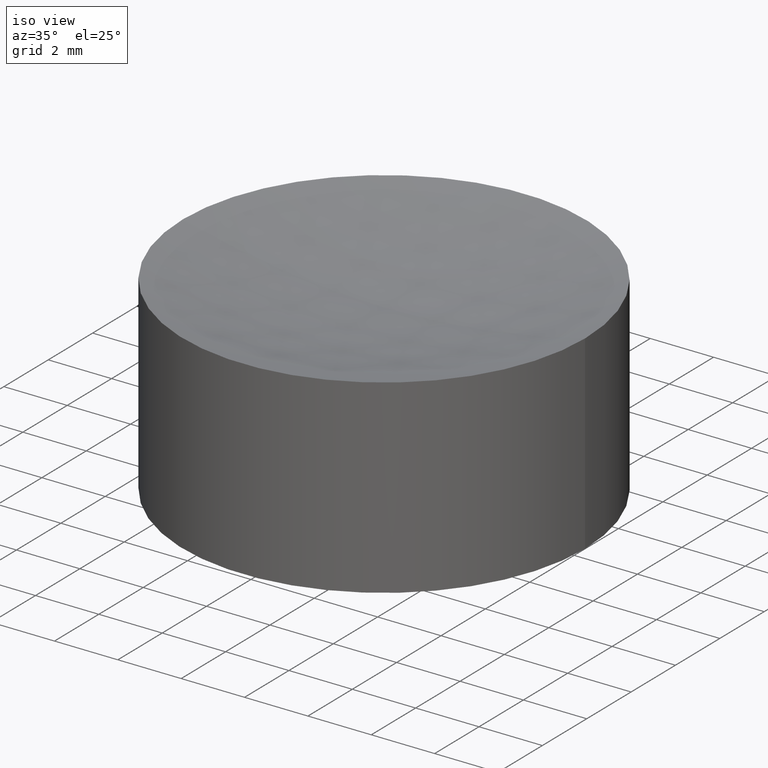
[diagram: clean part render]
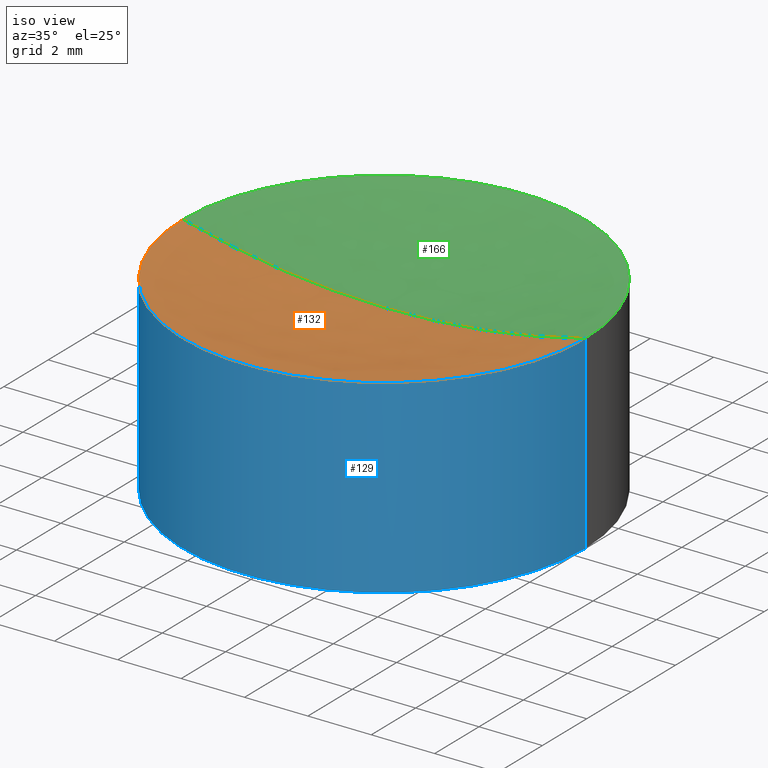
[diagram: same view with three faces highlighted in distinct colors, each labeled with its STEP entity id]
A machine part, iso view with three faces highlighted in distinct colors.
Their STEP definitions:

[orange] entity #132 — the highlighted spherical surface has radius 25 mm.
#1 = CARTESIAN_POINT ( 'NONE',  ( -6.349999999999997868, 0.000000000000000000, 5.999999999999998224 ) ) ;
#25 = DIRECTION ( 'NONE',  ( 0.000000000000000000, 0.000000000000000000, 1.000000000000000000 ) ) ;
#27 = DIRECTION ( 'NONE',  ( 0.000000000000000000, 1.000000000000000000, -0.000000000000000000 ) ) ;
#29 = DIRECTION ( 'NONE',  ( 1.000000000000000000, 1.224646799147353207E-16, 0.000000000000000000 ) ) ;
#36 = VERTEX_POINT ( 'NONE', #1 ) ;
#43 = CARTESIAN_POINT ( 'NONE',  ( 4.336808689942017736E-15, 0.000000000000000000, 30.18010545882710005 ) ) ;
#46 = DIRECTION ( 'NONE',  ( 1.224646799147353207E-16, -1.000000000000000000, 0.000000000000000000 ) ) ;
#54 = VERTEX_POINT ( 'NONE', #105 ) ;
#56 = CARTESIAN_POINT ( 'NONE',  ( 5.867617188876209455E-15, 0.000000000000000000, 5.180105458827095610 ) ) ;
#57 = CARTESIAN_POINT ( 'NONE',  ( 4.336808689942017736E-15, 0.000000000000000000, 30.18010545882710005 ) ) ;
#70 = DIRECTION ( 'NONE',  ( -0.000000000000000000, -0.000000000000000000, -1.000000000000000000 ) ) ;
#80 = AXIS2_PLACEMENT_3D ( 'NONE', #43, #98, #82 ) ;
#81 = EDGE_LOOP ( 'NONE', ( #121, #156, #133 ) ) ;
#82 = DIRECTION ( 'NONE',  ( 1.000000000000000000, 0.000000000000000000, 0.000000000000000000 ) ) ;
#92 = EDGE_CURVE ( 'NONE', #54, #120, #149, .T. ) ;
#94 = AXIS2_PLACEMENT_3D ( 'NONE', #99, #70, #161 ) ;
#98 = DIRECTION ( 'NONE',  ( 0.000000000000000000, -1.000000000000000000, -0.000000000000000000 ) ) ;
#99 = CARTESIAN_POINT ( 'NONE',  ( 4.336808689942017736E-15, 0.000000000000000000, 5.999999999999998224 ) ) ;
#105 = CARTESIAN_POINT ( 'NONE',  ( 6.350000000000006750, 7.776507174585701038E-16, 5.999999999999998224 ) ) ;
#108 = CARTESIAN_POINT ( 'NONE',  ( 4.336808689942017736E-15, 0.000000000000000000, 30.18010545882710005 ) ) ;
#116 = CIRCLE ( 'NONE', #94, 6.350000000000002309 ) ;
#120 = VERTEX_POINT ( 'NONE', #56 ) ;
#121 = ORIENTED_EDGE ( 'NONE', *, *, #176, .F. ) ;
#132 = ADVANCED_FACE ( 'NONE', ( #160 ), #180, .F. ) ;
#133 = ORIENTED_EDGE ( 'NONE', *, *, #92, .T. ) ;
#139 = AXIS2_PLACEMENT_3D ( 'NONE', #57, #46, #29 ) ;
#144 = CIRCLE ( 'NONE', #139, 25.00000000000000355 ) ;
#149 = CIRCLE ( 'NONE', #191, 25.00000000000000711 ) ;
#156 = ORIENTED_EDGE ( 'NONE', *, *, #193, .F. ) ;
#160 = FACE_OUTER_BOUND ( 'NONE', #81, .T. ) ;
#161 = DIRECTION ( 'NONE',  ( 1.000000000000000000, 0.000000000000000000, 0.000000000000000000 ) ) ;
#176 = EDGE_CURVE ( 'NONE', #36, #120, #144, .T. ) ;
#180 = SPHERICAL_SURFACE ( 'NONE', #80, 25.00000000000000355 ) ;
#191 = AXIS2_PLACEMENT_3D ( 'NONE', #108, #27, #25 ) ;
#193 = EDGE_CURVE ( 'NONE', #54, #36, #116, .T. ) ;

[blue] entity #129 — the highlighted cylindrical surface (partial cylindrical patch) has radius 6.35 mm, axis along (-0, -0, -1).
#1 = CARTESIAN_POINT ( 'NONE',  ( -6.349999999999997868, 0.000000000000000000, 5.999999999999998224 ) ) ;
#3 = LINE ( 'NONE', #119, #201 ) ;
#4 = LINE ( 'NONE', #68, #38 ) ;
#6 = DIRECTION ( 'NONE',  ( -0.000000000000000000, -0.000000000000000000, -1.000000000000000000 ) ) ;
#7 = FACE_OUTER_BOUND ( 'NONE', #169, .T. ) ;
#8 = EDGE_CURVE ( 'NONE', #54, #79, #3, .T. ) ;
#9 = CARTESIAN_POINT ( 'NONE',  ( 0.000000000000000000, 0.000000000000000000, 6.000000000000000000 ) ) ;
#23 = CYLINDRICAL_SURFACE ( 'NONE', #155, 6.349999999999999645 ) ;
#31 = AXIS2_PLACEMENT_3D ( 'NONE', #65, #134, #53 ) ;
#36 = VERTEX_POINT ( 'NONE', #1 ) ;
#38 = VECTOR ( 'NONE', #6, 1000.000000000000000 ) ;
#49 = EDGE_CURVE ( 'NONE', #147, #79, #102, .T. ) ;
#50 = EDGE_CURVE ( 'NONE', #36, #147, #4, .T. ) ;
#53 = DIRECTION ( 'NONE',  ( 1.000000000000000000, 0.000000000000000000, 0.000000000000000000 ) ) ;
#54 = VERTEX_POINT ( 'NONE', #105 ) ;
#65 = CARTESIAN_POINT ( 'NONE',  ( 0.000000000000000000, 0.000000000000000000, 0.000000000000000000 ) ) ;
#68 = CARTESIAN_POINT ( 'NONE',  ( -6.349999999999999645, 0.000000000000000000, 6.000000000000000000 ) ) ;
#69 = DIRECTION ( 'NONE',  ( -1.000000000000000000, 0.000000000000000000, 0.000000000000000000 ) ) ;
#70 = DIRECTION ( 'NONE',  ( -0.000000000000000000, -0.000000000000000000, -1.000000000000000000 ) ) ;
#79 = VERTEX_POINT ( 'NONE', #109 ) ;
#94 = AXIS2_PLACEMENT_3D ( 'NONE', #99, #70, #161 ) ;
#99 = CARTESIAN_POINT ( 'NONE',  ( 4.336808689942017736E-15, 0.000000000000000000, 5.999999999999998224 ) ) ;
#100 = ORIENTED_EDGE ( 'NONE', *, *, #50, .T. ) ;
#101 = ORIENTED_EDGE ( 'NONE', *, *, #8, .F. ) ;
#102 = CIRCLE ( 'NONE', #31, 6.349999999999999645 ) ;
#105 = CARTESIAN_POINT ( 'NONE',  ( 6.350000000000006750, 7.776507174585701038E-16, 5.999999999999998224 ) ) ;
#106 = ORIENTED_EDGE ( 'NONE', *, *, #49, .T. ) ;
#109 = CARTESIAN_POINT ( 'NONE',  ( 6.349999999999999645, 7.776507174585692163E-16, 0.000000000000000000 ) ) ;
#116 = CIRCLE ( 'NONE', #94, 6.350000000000002309 ) ;
#119 = CARTESIAN_POINT ( 'NONE',  ( 6.349999999999999645, 7.776507174585692163E-16, 6.000000000000000000 ) ) ;
#122 = CARTESIAN_POINT ( 'NONE',  ( -6.349999999999999645, 0.000000000000000000, 0.000000000000000000 ) ) ;
#129 = ADVANCED_FACE ( 'NONE', ( #7 ), #23, .T. ) ;
#134 = DIRECTION ( 'NONE',  ( 0.000000000000000000, 0.000000000000000000, 1.000000000000000000 ) ) ;
#147 = VERTEX_POINT ( 'NONE', #122 ) ;
#153 = DIRECTION ( 'NONE',  ( -0.000000000000000000, -0.000000000000000000, -1.000000000000000000 ) ) ;
#154 = ORIENTED_EDGE ( 'NONE', *, *, #193, .T. ) ;
#155 = AXIS2_PLACEMENT_3D ( 'NONE', #9, #196, #69 ) ;
#161 = DIRECTION ( 'NONE',  ( 1.000000000000000000, 0.000000000000000000, 0.000000000000000000 ) ) ;
#169 = EDGE_LOOP ( 'NONE', ( #101, #154, #100, #106 ) ) ;
#193 = EDGE_CURVE ( 'NONE', #54, #36, #116, .T. ) ;
#196 = DIRECTION ( 'NONE',  ( -0.000000000000000000, -0.000000000000000000, -1.000000000000000000 ) ) ;
#201 = VECTOR ( 'NONE', #153, 1000.000000000000000 ) ;

[green] entity #166 — the highlighted spherical surface has radius 25 mm.
#1 = CARTESIAN_POINT ( 'NONE',  ( -6.349999999999997868, 0.000000000000000000, 5.999999999999998224 ) ) ;
#10 = DIRECTION ( 'NONE',  ( 1.000000000000000000, 0.000000000000000000, 0.000000000000000000 ) ) ;
#13 = SPHERICAL_SURFACE ( 'NONE', #159, 25.00000000000000355 ) ;
#22 = EDGE_LOOP ( 'NONE', ( #78, #93, #194 ) ) ;
#25 = DIRECTION ( 'NONE',  ( 0.000000000000000000, 0.000000000000000000, 1.000000000000000000 ) ) ;
#27 = DIRECTION ( 'NONE',  ( 0.000000000000000000, 1.000000000000000000, -0.000000000000000000 ) ) ;
#29 = DIRECTION ( 'NONE',  ( 1.000000000000000000, 1.224646799147353207E-16, 0.000000000000000000 ) ) ;
#36 = VERTEX_POINT ( 'NONE', #1 ) ;
#39 = DIRECTION ( 'NONE',  ( 1.000000000000000000, 0.000000000000000000, 0.000000000000000000 ) ) ;
#42 = DIRECTION ( 'NONE',  ( 0.000000000000000000, -1.000000000000000000, -0.000000000000000000 ) ) ;
#46 = DIRECTION ( 'NONE',  ( 1.224646799147353207E-16, -1.000000000000000000, 0.000000000000000000 ) ) ;
#54 = VERTEX_POINT ( 'NONE', #105 ) ;
#56 = CARTESIAN_POINT ( 'NONE',  ( 5.867617188876209455E-15, 0.000000000000000000, 5.180105458827095610 ) ) ;
#57 = CARTESIAN_POINT ( 'NONE',  ( 4.336808689942017736E-15, 0.000000000000000000, 30.18010545882710005 ) ) ;
#73 = CARTESIAN_POINT ( 'NONE',  ( 4.336808689942017736E-15, 0.000000000000000000, 30.18010545882710005 ) ) ;
#78 = ORIENTED_EDGE ( 'NONE', *, *, #97, .F. ) ;
#85 = DIRECTION ( 'NONE',  ( -0.000000000000000000, -0.000000000000000000, -1.000000000000000000 ) ) ;
#89 = AXIS2_PLACEMENT_3D ( 'NONE', #123, #85, #39 ) ;
#92 = EDGE_CURVE ( 'NONE', #54, #120, #149, .T. ) ;
#93 = ORIENTED_EDGE ( 'NONE', *, *, #176, .T. ) ;
#97 = EDGE_CURVE ( 'NONE', #36, #54, #181, .T. ) ;
#105 = CARTESIAN_POINT ( 'NONE',  ( 6.350000000000006750, 7.776507174585701038E-16, 5.999999999999998224 ) ) ;
#108 = CARTESIAN_POINT ( 'NONE',  ( 4.336808689942017736E-15, 0.000000000000000000, 30.18010545882710005 ) ) ;
#120 = VERTEX_POINT ( 'NONE', #56 ) ;
#123 = CARTESIAN_POINT ( 'NONE',  ( 4.336808689942017736E-15, 0.000000000000000000, 5.999999999999998224 ) ) ;
#139 = AXIS2_PLACEMENT_3D ( 'NONE', #57, #46, #29 ) ;
#144 = CIRCLE ( 'NONE', #139, 25.00000000000000355 ) ;
#149 = CIRCLE ( 'NONE', #191, 25.00000000000000711 ) ;
#159 = AXIS2_PLACEMENT_3D ( 'NONE', #73, #42, #10 ) ;
#166 = ADVANCED_FACE ( 'NONE', ( #195 ), #13, .F. ) ;
#176 = EDGE_CURVE ( 'NONE', #36, #120, #144, .T. ) ;
#181 = CIRCLE ( 'NONE', #89, 6.350000000000002309 ) ;
#191 = AXIS2_PLACEMENT_3D ( 'NONE', #108, #27, #25 ) ;
#194 = ORIENTED_EDGE ( 'NONE', *, *, #92, .F. ) ;
#195 = FACE_OUTER_BOUND ( 'NONE', #22, .T. ) ;